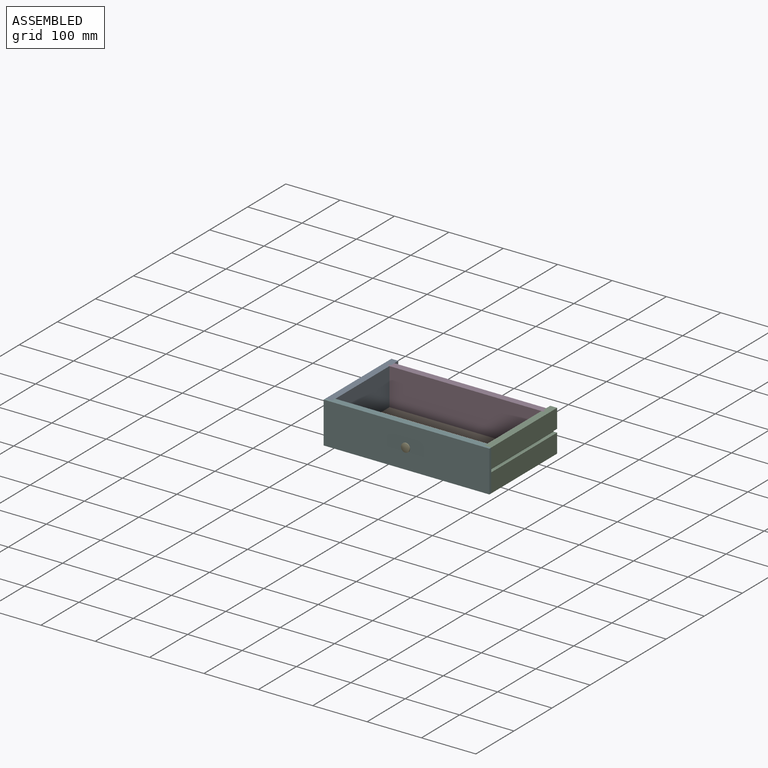
[diagram: assembled view]
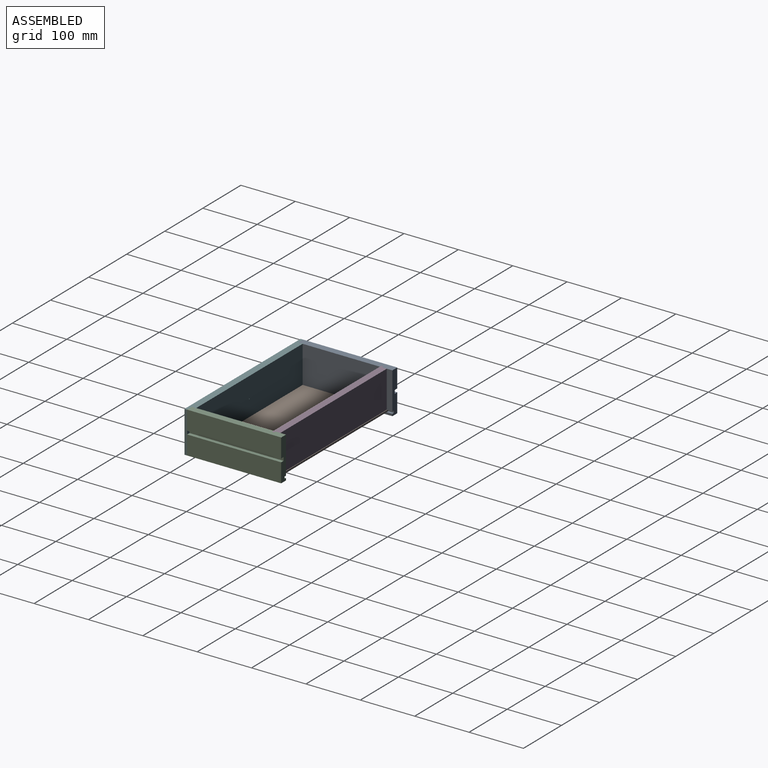
[diagram: assembled view, second angle]
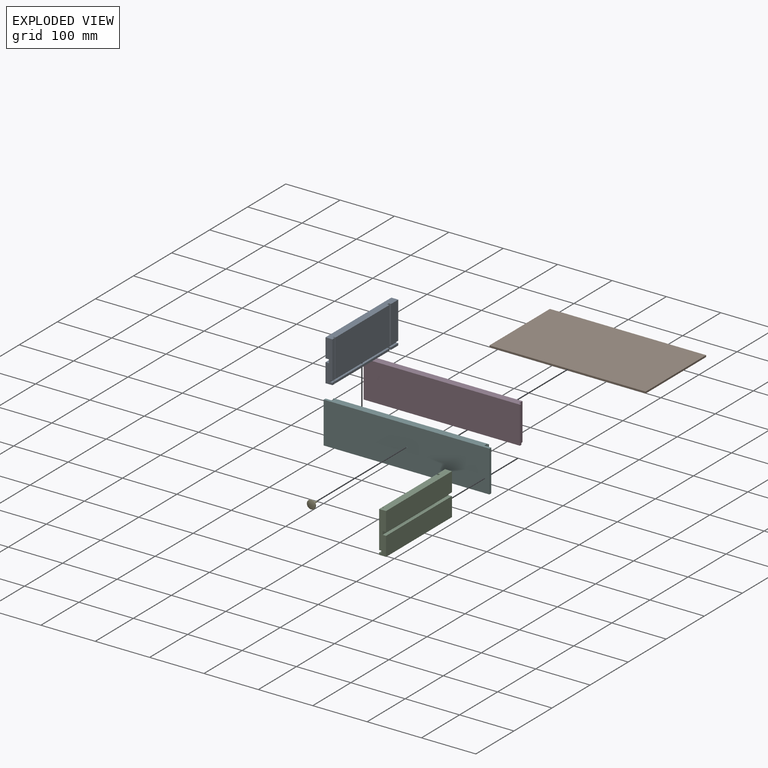
[diagram: exploded view]
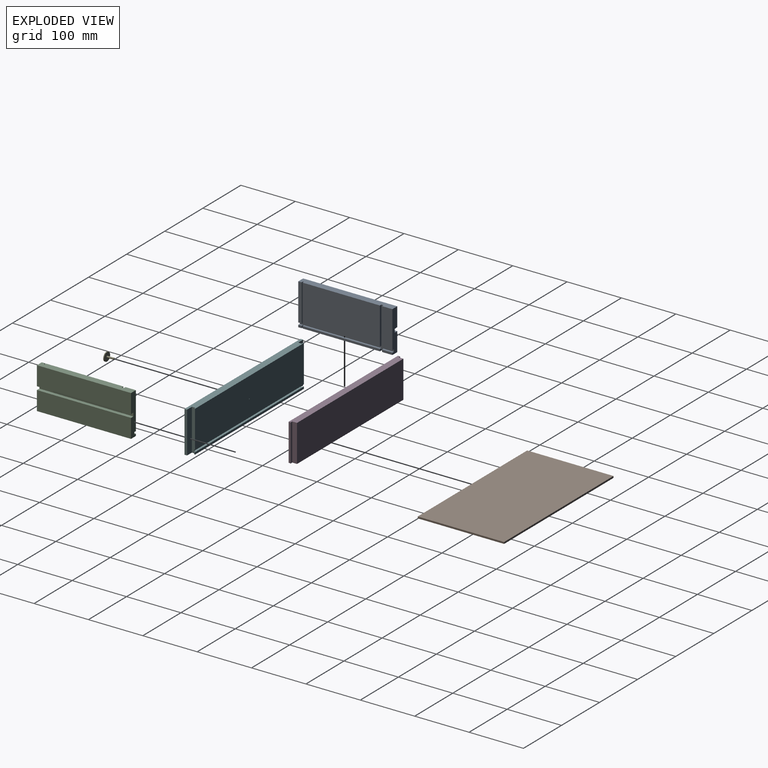
[diagram: exploded view, second angle]
ASSEMBLY  parts=6 mates=6
PART A: 30 faces, bbox 12.7x173x76.2 mm
  f0: plane 19.05x3.97mm, normal (1,0,0), area 75.6mm2, adj f4,f6,f18,f29
  f1: plane 142.08x3.97mm, normal (1,0,0), area 563.9mm2, adj f4,f5,f26,f28
  f2: plane 68.26x19.05mm, normal (1,0,0), area 1300.4mm2, adj f8,f13,f18,f23
  f3: plane 142.08x68.26mm, normal (1,0,0), area 9698.8mm2, adj f7,f13,f21,f24
  f4: plane 173.04x12.7mm, normal (0,0,-1), area 2176.8mm2, adj f0,f1,f9,f10,f11,f18,f19,f25
  f5: plane 150.02x3.97mm, normal (0,0,1), area 590.3mm2, adj f1,f10,f11,f19,f25,f26,f27,f28
  f6: plane 19.05x3.97mm, normal (0,0,1), area 75.6mm2, adj f0,f11,f18,f29
  f7: plane 150.02x3.97mm, normal (0,0,-1), area 590.3mm2, adj f3,f11,f12,f19,f20,f21,f22,f24
  f8: plane 19.05x3.97mm, normal (0,0,-1), area 75.6mm2, adj f2,f11,f18,f23
  f9: plane 173.04x34.93mm, normal (-1,0,0), area 6043.3mm2, adj f4,f17,f18,f19
  f10: plane 6.35x3.97mm, normal (1,0,0), area 25.2mm2, adj f4,f5,f19,f25
  f11: plane 173.04x76.2mm, normal (1,0,0), area 973.4mm2, adj f4,f5,f6,f7,f8,f13,f18,f19
  f12: plane 68.26x6.35mm, normal (1,0,0), area 433.5mm2, adj f7,f13,f19,f22
  f13: plane 173.04x12.7mm, normal (0,0,1), area 2176.8mm2, adj f2,f3,f11,f12,f14,f18,f19,f20
  f14: plane 173.04x34.93mm, normal (-1,0,0), area 6043.3mm2, adj f13,f15,f18,f19
  f15: plane 173.04x6.35mm, normal (0,0,-1), area 1098.8mm2, adj f14,f16,f18,f19
  f16: plane 173.04x6.35mm, normal (-1,0,0), area 1098.8mm2, adj f15,f17,f18,f19
  f17: plane 173.04x6.35mm, normal (0,0,1), area 1098.8mm2, adj f9,f16,f18,f19
  f18: plane 76.2x12.7mm, normal (0,1,0), area 911.7mm2, adj f0,f2,f4,f6,f8,f9,f11,f13
  f19: plane 76.2x12.7mm, normal (0,-1,0), area 911.7mm2, adj f4,f5,f7,f9,f10,f11,f12,f13
  f20: plane 68.26x1.59mm, normal (1,0,0), area 108.4mm2, adj f7,f13,f21,f22
  f21: plane 68.26x3.18mm, normal (0,-1,0), area 216.7mm2, adj f3,f7,f13,f20
  f22: plane 68.26x3.18mm, normal (0,1,0), area 216.7mm2, adj f7,f12,f13,f20
  f23: plane 68.26x3.97mm, normal (0,-1,0), area 270.9mm2, adj f2,f8,f11,f13
  f24: plane 68.26x3.97mm, normal (0,1,0), area 270.9mm2, adj f3,f7,f11,f13
  f25: plane 3.97x3.18mm, normal (0,1,0), area 12.6mm2, adj f4,f5,f10,f27
  f26: plane 3.97x3.18mm, normal (0,-1,0), area 12.6mm2, adj f1,f4,f5,f27
  f27: plane 3.97x1.59mm, normal (1,0,0), area 6.3mm2, adj f4,f5,f25,f26
  f28: plane 3.97x3.97mm, normal (0,1,0), area 15.8mm2, adj f1,f4,f5,f11
  f29: plane 3.97x3.97mm, normal (0,-1,0), area 15.8mm2, adj f0,f4,f6,f11
PART B: 6 faces, bbox 287.3x158.8x3.2 mm
  f0: plane 158.75x3.18mm, normal (-1,0,0), area 504mm2, adj f1,f3,f4,f5
  f1: plane 287.34x3.18mm, normal (0,-1,0), area 912.3mm2, adj f0,f2,f4,f5
  f2: plane 158.75x3.18mm, normal (1,0,0), area 504mm2, adj f1,f3,f4,f5
  f3: plane 287.34x3.18mm, normal (0,1,0), area 912.3mm2, adj f0,f2,f4,f5
  f4: plane 287.34x158.75mm, normal (0,0,1), area 45614.8mm2, adj f0,f1,f2,f3
  f5: plane 287.34x158.75mm, normal (0,0,-1), area 45614.8mm2, adj f0,f1,f2,f3
PART C: 30 faces, bbox 12.7x173x76.2 mm
  f0: plane 19.05x3.97mm, normal (1,0,0), area 75.6mm2, adj f4,f5,f18,f28
  f1: plane 142.08x3.97mm, normal (1,0,0), area 563.9mm2, adj f4,f6,f25,f29
  f2: plane 68.26x19.05mm, normal (1,0,0), area 1300.4mm2, adj f7,f9,f18,f24
  f3: plane 142.08x68.26mm, normal (1,0,0), area 9698.8mm2, adj f8,f9,f22,f23
  f4: plane 173.04x12.7mm, normal (0,0,-1), area 2176.8mm2, adj f0,f1,f10,f11,f12,f18,f19,f25
  f5: plane 19.05x3.97mm, normal (0,0,1), area 75.6mm2, adj f0,f12,f18,f28
  f6: plane 150.02x3.97mm, normal (0,0,1), area 590.3mm2, adj f1,f11,f12,f19,f25,f26,f27,f29
  f7: plane 19.05x3.97mm, normal (0,0,-1), area 75.6mm2, adj f2,f12,f18,f24
  f8: plane 150.02x3.97mm, normal (0,0,-1), area 590.3mm2, adj f3,f12,f13,f19,f20,f21,f22,f23
  f9: plane 173.04x12.7mm, normal (0,0,1), area 2176.8mm2, adj f2,f3,f12,f13,f14,f18,f19,f20
  f10: plane 173.04x34.93mm, normal (-1,0,0), area 6043.3mm2, adj f4,f17,f18,f19
  f11: plane 6.35x3.97mm, normal (1,0,0), area 25.2mm2, adj f4,f6,f19,f26
  f12: plane 173.04x76.2mm, normal (1,0,0), area 973.4mm2, adj f4,f5,f6,f7,f8,f9,f18,f19
  f13: plane 68.26x6.35mm, normal (1,0,0), area 433.5mm2, adj f8,f9,f19,f21
  f14: plane 173.04x34.93mm, normal (-1,0,0), area 6043.3mm2, adj f9,f15,f18,f19
  f15: plane 173.04x6.35mm, normal (0,0,-1), area 1098.8mm2, adj f14,f16,f18,f19
  f16: plane 173.04x6.35mm, normal (-1,0,0), area 1098.8mm2, adj f15,f17,f18,f19
  f17: plane 173.04x6.35mm, normal (0,0,1), area 1098.8mm2, adj f10,f16,f18,f19
  f18: plane 76.2x12.7mm, normal (0,-1,0), area 911.7mm2, adj f0,f2,f4,f5,f7,f9,f10,f12
  f19: plane 76.2x12.7mm, normal (0,1,0), area 911.7mm2, adj f4,f6,f8,f9,f10,f11,f12,f13
  f20: plane 68.26x1.59mm, normal (1,0,0), area 108.4mm2, adj f8,f9,f21,f22
  f21: plane 68.26x3.18mm, normal (0,-1,0), area 216.7mm2, adj f8,f9,f13,f20
  f22: plane 68.26x3.18mm, normal (0,1,0), area 216.7mm2, adj f3,f8,f9,f20
  f23: plane 68.26x3.97mm, normal (0,-1,0), area 270.9mm2, adj f3,f8,f9,f12
  f24: plane 68.26x3.97mm, normal (0,1,0), area 270.9mm2, adj f2,f7,f9,f12
  f25: plane 3.97x3.18mm, normal (0,1,0), area 12.6mm2, adj f1,f4,f6,f27
  f26: plane 3.97x3.18mm, normal (0,-1,0), area 12.6mm2, adj f4,f6,f11,f27
  f27: plane 3.97x1.59mm, normal (1,0,0), area 6.3mm2, adj f4,f6,f25,f26
  f28: plane 3.97x3.97mm, normal (0,1,0), area 15.8mm2, adj f0,f4,f5,f12
  f29: plane 3.97x3.97mm, normal (0,-1,0), area 15.8mm2, adj f1,f4,f6,f12
PART D: 10 faces, bbox 287.3x12.7x68.3 mm
  f0: plane 68.26x3.96mm, normal (-1,0,0), area 270.5mm2, adj f1,f7,f8,f9
  f1: plane 287.34x68.26mm, normal (0,-1,0), area 19614.4mm2, adj f0,f2,f8,f9
  f2: plane 68.26x3.96mm, normal (1,0,0), area 270.5mm2, adj f1,f3,f8,f9
  f3: plane 68.26x3.97mm, normal (0,1,0), area 270.9mm2, adj f2,f4,f8,f9
  f4: plane 68.26x8.74mm, normal (1,0,0), area 596.5mm2, adj f3,f5,f8,f9
  f5: plane 279.4x68.26mm, normal (0,1,0), area 19072.5mm2, adj f4,f6,f8,f9
  f6: plane 68.26x8.74mm, normal (-1,0,0), area 596.5mm2, adj f5,f7,f8,f9
  f7: plane 68.26x3.97mm, normal (0,1,0), area 270.9mm2, adj f0,f6,f8,f9
  f8: plane 287.34x12.7mm, normal (0,0,1), area 3579.8mm2, adj f0,f1,f2,f3,f4,f5,f6,f7
  f9: plane 287.34x12.7mm, normal (0,0,-1), area 3579.8mm2, adj f0,f1,f2,f3,f4,f5,f6,f7
PART E: 5 faces, bbox 15.9x15.9x15.9 mm
  f0: plane 3.18x3.18mm, normal (0,-1,0), area 7.9mm2, adj f4
  f1: sphere r=25.4mm, area 203mm2, adj f2
  f2: cylinder r=7.94mm len=15.88mm, axis (0,-1,0), area 78.5mm2, adj f1,f3
  f3: plane 15.88x15.88mm, normal (0,-1,0), area 190mm2, adj f2,f4
  f4: cylinder r=1.59mm len=13.03mm, axis (0,-1,0), area 129.9mm2, adj f0,f3
PART F: 23 faces, bbox 304.8x12.7x76.2 mm
  f0: plane 285.75x68.26mm, normal (0,1,0), area 19504mm2, adj f11,f13,f17,f19,f22
  f1: plane 3.97x3.18mm, normal (0,-1,0), area 12.6mm2, adj f2,f9,f18,f21
  f2: plane 3.97x1.59mm, normal (1,0,0), area 6.3mm2, adj f1,f12,f18,f21
  f3: plane 3.97x1.59mm, normal (-1,0,0), area 6.3mm2, adj f4,f12,f18,f21
  f4: plane 3.97x3.18mm, normal (0,-1,0), area 12.6mm2, adj f3,f15,f18,f21
  f5: plane 76.2x4.76mm, normal (-1,0,0), area 362.9mm2, adj f6,f16,f17,f18
  f6: plane 304.8x76.2mm, normal (0,-1,0), area 23223.8mm2, adj f5,f7,f17,f18,f22
  f7: plane 76.2x4.76mm, normal (1,0,0), area 362.9mm2, adj f6,f8,f17,f18
  f8: plane 76.2x12.7mm, normal (0,1,0), area 967.7mm2, adj f7,f9,f17,f18
  f9: plane 76.2x6.35mm, normal (1,0,0), area 474.4mm2, adj f1,f8,f10,f17,f18,f19,f20,f21
  f10: plane 68.26x3.18mm, normal (0,-1,0), area 216.7mm2, adj f9,f11,f17,f19
  f11: plane 68.26x1.59mm, normal (1,0,0), area 108.4mm2, adj f0,f10,f17,f19
  f12: plane 285.75x3.97mm, normal (0,1,0), area 1134.1mm2, adj f2,f3,f18,f21
  f13: plane 68.26x1.59mm, normal (-1,0,0), area 108.4mm2, adj f0,f14,f17,f19
  f14: plane 68.26x3.18mm, normal (0,-1,0), area 216.7mm2, adj f13,f15,f17,f19
  f15: plane 76.2x6.35mm, normal (-1,0,0), area 474.4mm2, adj f4,f14,f16,f17,f18,f19,f20,f21
  f16: plane 76.2x12.7mm, normal (0,1,0), area 967.7mm2, adj f5,f15,f17,f18
  f17: plane 304.8x12.7mm, normal (0,0,1), area 3679.4mm2, adj f0,f5,f6,f7,f8,f9,f10,f11
  f18: plane 304.8x12.7mm, normal (0,0,-1), area 3679.4mm2, adj f1,f2,f3,f4,f5,f6,f7,f8
  f19: plane 285.75x3.97mm, normal (0,0,-1), area 1118.9mm2, adj f0,f9,f10,f11,f13,f14,f15,f20
  f20: plane 279.4x3.97mm, normal (0,1,0), area 1108.9mm2, adj f9,f15,f19,f21
  f21: plane 285.75x3.97mm, normal (0,0,1), area 1118.9mm2, adj f1,f2,f3,f4,f9,f12,f15,f20
  f22: cylinder r=0.79mm len=12.7mm, axis (0,-1,0), area 63.3mm2, adj f0,f6
PLACE A t=(0,4.76,0)mm
PLACE B t=(8.73,8.73,3.97)mm
PLACE C rot(axis=(0,0,1),180deg) t=(304.8,4.76,0)mm
PLACE D t=(8.73,154.78,7.94)mm
PLACE E rot(axis=(0.71,0,-0.71),180deg) t=(152.4,11.11,38.1)mm
PLACE F at identity fixed
MATE fastened E.f2 <-> F.f22  axis (0,1,0) through (152.4,11.11,38.1)mm
MATE planar D.f5 <-> B.f3  axis (0,1,0) through (152.4,167.48,42.07)mm
MATE fastened D.f0 <-> A.f11  axis (1,0,0) through (8.73,154.78,76.2)mm
MATE slider B.f3 <-> C.f18  axis (0,1,0) through (296.07,167.48,3.97)mm
MATE fastened C.f9 <-> F.f17  axis (0,0,-1) through (292.1,4.76,76.2)mm
MATE fastened A.f19 <-> F.f16  axis (0,-1,0) through (12.7,4.76,76.2)mm
